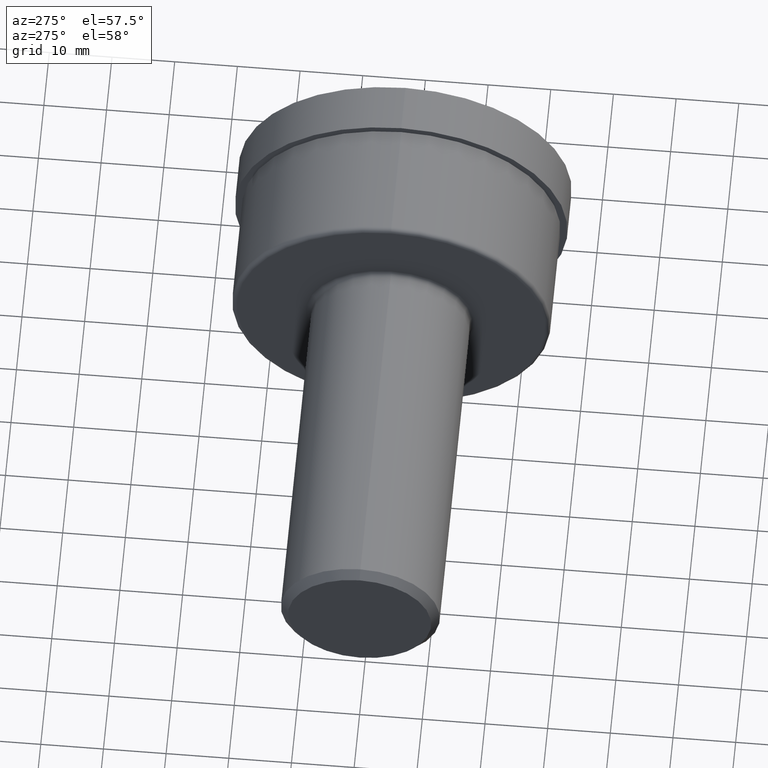
[diagram: clean part render]
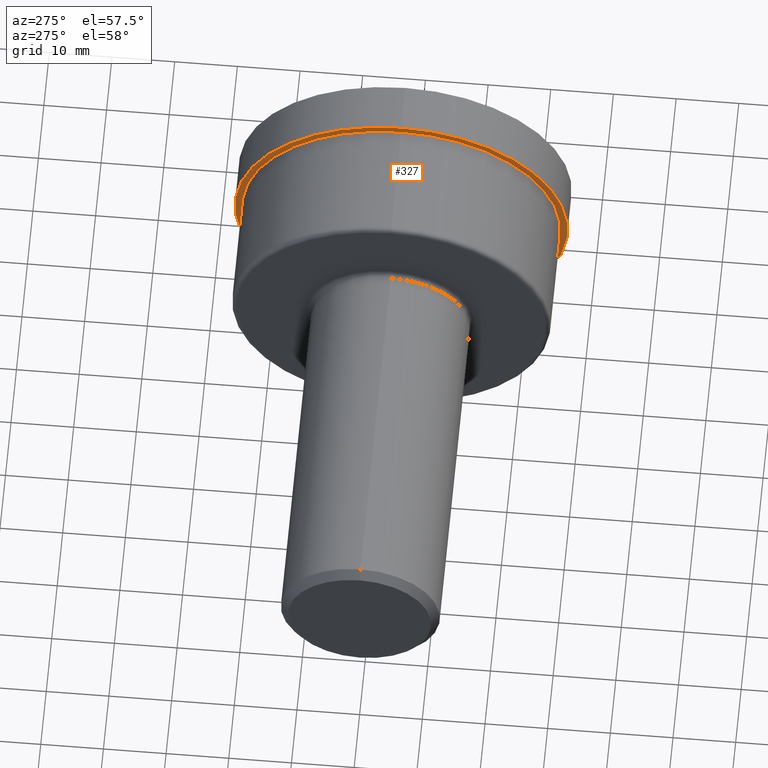
[diagram: same view with one face highlighted and labeled with its STEP entity id]
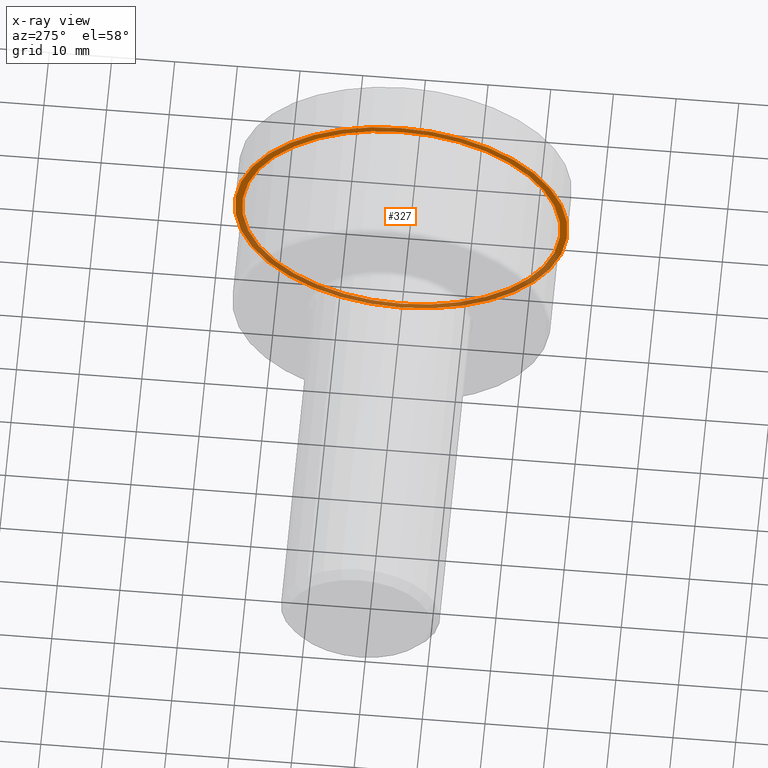
[diagram: x-ray of the same camera — body ghosted, the highlighted face saturated]
A machine part, auxiliary view. The second image highlights one B-rep face of the part: STEP entity #327.
The next image is the same camera in x-ray: the body ghosted, the highlighted face saturated — about 42% of this face is hidden behind the body in this view.
In plain terms, the highlighted planar face has unit normal (1, 0, 0).
Its self-contained STEP definition (entity closure, byte-faithful):
#9 = CIRCLE ( 'NONE', #666, 1.000000000000000000 ) ;
#52 = EDGE_CURVE ( 'NONE', #570, #402, #142, .T. ) ;
#61 = EDGE_CURVE ( 'NONE', #402, #570, #229, .T. ) ;
#63 = DIRECTION ( 'NONE',  ( -1.000000000000000000, -0.000000000000000000, -0.000000000000000000 ) ) ;
#75 = ORIENTED_EDGE ( 'NONE', *, *, #61, .T. ) ;
#84 = DIRECTION ( 'NONE',  ( 0.000000000000000000, 0.000000000000000000, 1.000000000000000000 ) ) ;
#88 = CARTESIAN_POINT ( 'NONE',  ( 2.986999999999999655, 0.000000000000000000, 0.000000000000000000 ) ) ;
#106 = AXIS2_PLACEMENT_3D ( 'NONE', #422, #261, #84 ) ;
#111 = CARTESIAN_POINT ( 'NONE',  ( 2.986999999999999655, 0.000000000000000000, 1.000000000000000000 ) ) ;
#119 = AXIS2_PLACEMENT_3D ( 'NONE', #384, #546, #333 ) ;
#142 = CIRCLE ( 'NONE', #106, 1.044999999999999929 ) ;
#191 = CARTESIAN_POINT ( 'NONE',  ( 2.986999999999999655, 1.224646799147353207E-16, -1.000000000000000000 ) ) ;
#214 = AXIS2_PLACEMENT_3D ( 'NONE', #680, #228, #453 ) ;
#222 = CARTESIAN_POINT ( 'NONE',  ( 2.986999999999999655, 0.000000000000000000, 1.044999999999999929 ) ) ;
#228 = DIRECTION ( 'NONE',  ( 1.000000000000000000, 0.000000000000000000, 0.000000000000000000 ) ) ;
#229 = CIRCLE ( 'NONE', #328, 1.044999999999999929 ) ;
#238 = ORIENTED_EDGE ( 'NONE', *, *, #394, .F. ) ;
#242 = EDGE_CURVE ( 'NONE', #625, #479, #339, .T. ) ;
#261 = DIRECTION ( 'NONE',  ( -1.000000000000000000, -0.000000000000000000, -0.000000000000000000 ) ) ;
#283 = FACE_BOUND ( 'NONE', #691, .T. ) ;
#310 = DIRECTION ( 'NONE',  ( -1.000000000000000000, -0.000000000000000000, -0.000000000000000000 ) ) ;
#327 = ADVANCED_FACE ( 'NONE', ( #283, #506 ), #338, .F. ) ;
#328 = AXIS2_PLACEMENT_3D ( 'NONE', #88, #310, #427 ) ;
#333 = DIRECTION ( 'NONE',  ( 0.000000000000000000, 0.000000000000000000, 1.000000000000000000 ) ) ;
#338 = PLANE ( 'NONE',  #214 ) ;
#339 = CIRCLE ( 'NONE', #119, 1.000000000000000000 ) ;
#357 = CARTESIAN_POINT ( 'NONE',  ( 2.986999999999999655, 0.000000000000000000, 0.000000000000000000 ) ) ;
#384 = CARTESIAN_POINT ( 'NONE',  ( 2.986999999999999655, 0.000000000000000000, 0.000000000000000000 ) ) ;
#394 = EDGE_CURVE ( 'NONE', #479, #625, #9, .T. ) ;
#402 = VERTEX_POINT ( 'NONE', #568 ) ;
#422 = CARTESIAN_POINT ( 'NONE',  ( 2.986999999999999655, 0.000000000000000000, 0.000000000000000000 ) ) ;
#427 = DIRECTION ( 'NONE',  ( 0.000000000000000000, 0.000000000000000000, 1.000000000000000000 ) ) ;
#453 = DIRECTION ( 'NONE',  ( 0.000000000000000000, 0.000000000000000000, -1.000000000000000000 ) ) ;
#466 = ORIENTED_EDGE ( 'NONE', *, *, #242, .F. ) ;
#471 = EDGE_LOOP ( 'NONE', ( #721, #75 ) ) ;
#479 = VERTEX_POINT ( 'NONE', #191 ) ;
#506 = FACE_OUTER_BOUND ( 'NONE', #471, .T. ) ;
#511 = DIRECTION ( 'NONE',  ( 0.000000000000000000, 0.000000000000000000, 1.000000000000000000 ) ) ;
#546 = DIRECTION ( 'NONE',  ( -1.000000000000000000, -0.000000000000000000, -0.000000000000000000 ) ) ;
#568 = CARTESIAN_POINT ( 'NONE',  ( 2.986999999999999655, 1.279755905108984103E-16, -1.044999999999999929 ) ) ;
#570 = VERTEX_POINT ( 'NONE', #222 ) ;
#625 = VERTEX_POINT ( 'NONE', #111 ) ;
#666 = AXIS2_PLACEMENT_3D ( 'NONE', #357, #63, #511 ) ;
#680 = CARTESIAN_POINT ( 'NONE',  ( 2.986999999999999655, 1.000000000000000000, 0.000000000000000000 ) ) ;
#691 = EDGE_LOOP ( 'NONE', ( #466, #238 ) ) ;
#721 = ORIENTED_EDGE ( 'NONE', *, *, #52, .T. ) ;